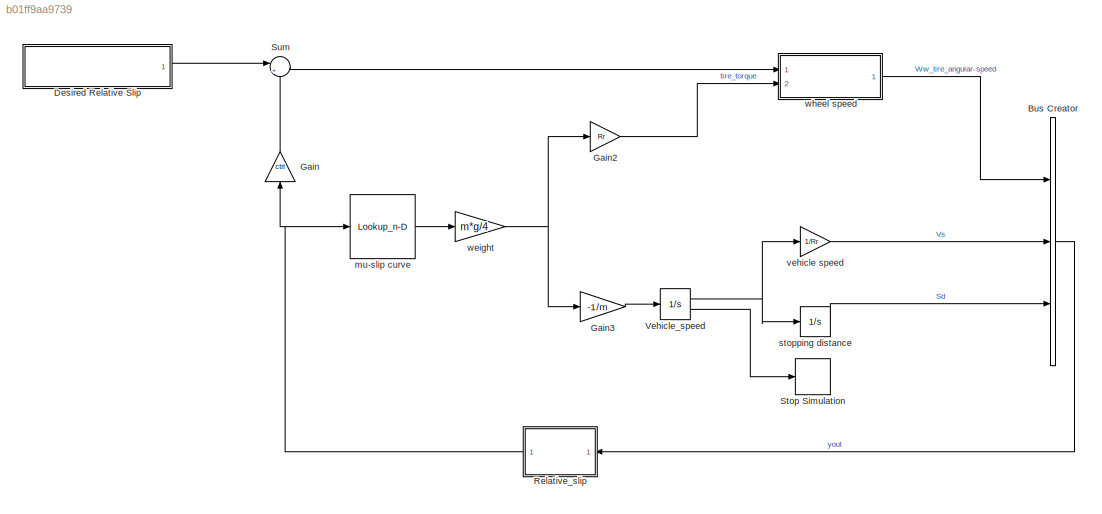
MODEL slx_b01ff9aa9739
KIND model
CONFIG AbsTol = auto
CONFIG EnableMultiTasking = off
CONFIG FixedStep = auto
CONFIG MaxStep = auto
CONFIG MinStep = auto
CONFIG PostLoadFcn = I=5;\nKf=1;\nPBmax=1500;\nRr=1.25;\nTB=0.01;\nctrl=1;\ng=32.18;\nm=50;\nv0=88;\nmu=[0 0.4 0.8 0.97 1 0.98 0.96 0.94 0.92 0.9 0.88 0.855 0.83 0.81 0.79 0.77 0.75 0.73 0.72 0.71 0.7]; \nslip=[0 0.05 0.1 0.15000000000000002 0.2 0.25 0.30000000000000004 0.35000000000000003 0.4 0.45 0.5 0.55 0.6 0.64999999999999991 0.7 0.75 0.8 0.85 0.9 0.95 1]; 
CONFIG RelTol = 1e-3
CONFIG SampleTimeConstraint = Unconstrained
CONFIG SolverName = VariableStepAuto
CONFIG StartTime = 0.0
CONFIG StopTime = 25
BLOCK [BusCreator] Bus Creator
  DisplayOption = bar
  InheritFromInputs = on
  Inputs = 3
  Ports = [3, 1]
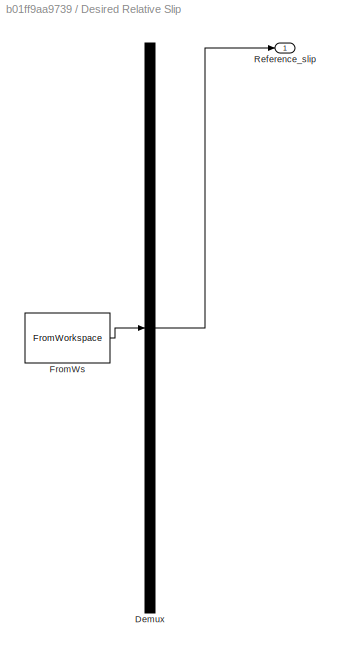
BLOCK [SubSystem] Desired Relative Slip
  ClipboardFcn = sigbuilder_block('clipboard');
  CloseFcn = sigbuilder_block('close');
  ContinueFcn = sigbuilder_block('continue');
  CopyFcn = sigbuilder_block('copy');
  DeleteFcn = sigbuilder_block('delete');
  LoadFcn = sigbuilder_block('load');
  MaskHideContents = on
  ModelCloseFcn = sigbuilder_block('modelClose');
  NameChangeFcn = sigbuilder_block('namechange');
  OpenFcn = sigbuilder_block('open',[437.6 199.2 550.4 400 ]);
  PauseFcn = sigbuilder_block('pause');
  Ports = [0, 1]
  PreSaveFcn = sigbuilder_block('preSave');
  RequestExecContextInheritance = off
  StartFcn = sigbuilder_block('start');
  StopFcn = sigbuilder_block('stop');
  Tag = STV Subsys
BLOCK [Demux] Desired Relative Slip/Demux
  DisplayOption = none
  Outputs = 1
  Ports = [1, 1]
  Tag = STV Demux
BLOCK [FromWorkspace] Desired Relative Slip/FromWs
  Tag = STV FromWs
  VariableName = tuvar
BLOCK [Outport] Desired Relative Slip/Reference_slip
  Tag = STV Outport
BLOCK [Gain] Gain
  Gain = ctrl
  NameLocation = right
BLOCK [Gain] Gain2
  Gain = Rr
BLOCK [Gain] Gain3
  Gain = -1/m
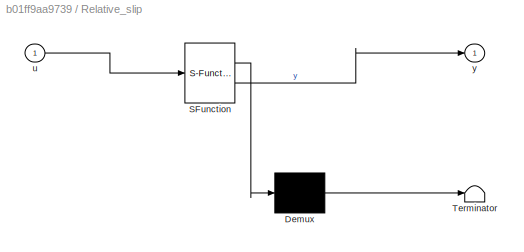
BLOCK [SubSystem] Relative_slip
  ErrorFcn = Stateflow.Translate.translate
  NameLocation = top
  PermitHierarchicalResolution = ExplicitOnly
  Ports = [1, 1]
  RequestExecContextInheritance = off
  SFBlockType = MATLAB Function
  TreatAsAtomicUnit = on
BLOCK [Demux] Relative_slip/ Demux 
  Outputs = 1
  Ports = [1, 1]
BLOCK [S-Function] Relative_slip/ SFunction 
  EnableBusSupport = on
  FunctionName = sf_sfun
  PortCounts = [1 2]
  Ports = [1, 2]
  SFcnIsStateOwnerBlock = off
  SFunctionDeploymentMode = off
  Tag = Stateflow S-Function 2
BLOCK [Terminator] Relative_slip/ Terminator 
BLOCK [Inport] Relative_slip/u
BLOCK [Outport] Relative_slip/y
BLOCK [Stop] Stop Simulation
BLOCK [Sum] Sum
  Inputs = |+-
  Ports = [2, 1]
BLOCK [Integrator] Vehicle_speed
  InitialCondition = v0
  LimitOutput = on
  LowerSaturationLimit = 0
  Ports = [1, 2]
  ShowSaturationPort = on
  UpperSaturationLimit = 5000
BLOCK [Lookup_n-D] mu-slip curve
  BreakpointsForDimension1 = slip
  InputPortMap = u0
  InternalRulePriority = Speed
  NumberOfTableDimensions = 1
  Ports = [1, 1]
  RndMeth = Simplest
  Table = mu
BLOCK [Integrator] stopping distance
  Ports = [1, 1]
BLOCK [Gain] vehicle speed
  Gain = 1/Rr
BLOCK [Gain] weight
  Gain = m*g/4
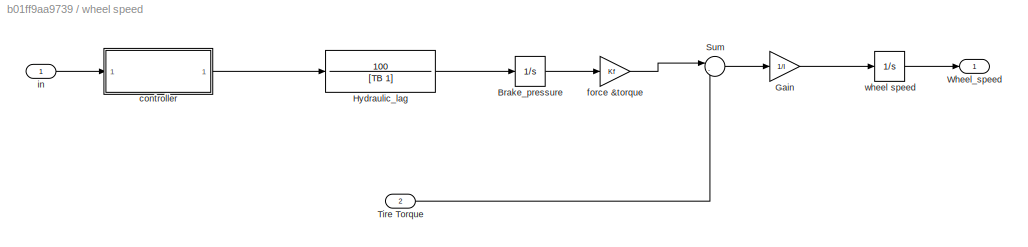
BLOCK [SubSystem] wheel speed
  Ports = [2, 1]
  RequestExecContextInheritance = off
BLOCK [Integrator] wheel speed/Brake_pressure
  LimitOutput = on
  LowerSaturationLimit = 0
  Ports = [1, 1]
  UpperSaturationLimit = PBmax
BLOCK [Gain] wheel speed/Gain
  Gain = 1/I
BLOCK [TransferFcn] wheel speed/Hydraulic_lag
  Denominator = [TB 1]
  Numerator = 100
BLOCK [Sum] wheel speed/Sum
  Inputs = |-+
  Ports = [2, 1]
BLOCK [Inport] wheel speed/Tire Torque
  Port = 2
BLOCK [Outport] wheel speed/Wheel_speed
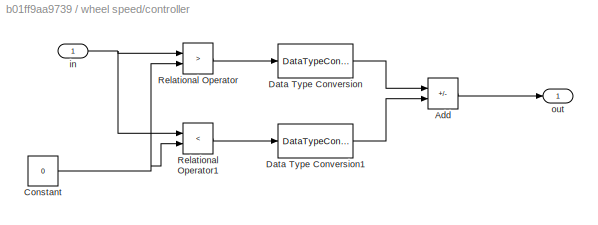
BLOCK [SubSystem] wheel speed/controller
  Ports = [1, 1]
  RequestExecContextInheritance = off
BLOCK [Sum] wheel speed/controller/Add
  IconShape = rectangular
  Inputs = +-
  Ports = [2, 1]
BLOCK [Constant] wheel speed/controller/Constant
  Value = 0
BLOCK [DataTypeConversion] wheel speed/controller/Data Type Conversion
  OutDataTypeStr = double
  RndMeth = Floor
  SaturateOnIntegerOverflow = off
BLOCK [DataTypeConversion] wheel speed/controller/Data Type Conversion1
  OutDataTypeStr = double
  RndMeth = Floor
  SaturateOnIntegerOverflow = off
BLOCK [RelationalOperator] wheel speed/controller/Relational Operator
  InputSameDT = off
  Operator = >
  OutDataTypeStr = boolean
  Ports = [2, 1]
  RndMeth = Simplest
BLOCK [RelationalOperator] wheel speed/controller/Relational Operator1
  InputSameDT = off
  Operator = <
  OutDataTypeStr = boolean
  Ports = [2, 1]
  RndMeth = Simplest
BLOCK [Inport] wheel speed/controller/in
BLOCK [Outport] wheel speed/controller/out
BLOCK [Gain] wheel speed/force &torque
  Gain = Kf
BLOCK [Inport] wheel speed/in
BLOCK [Integrator] wheel speed/wheel speed
  InitialCondition = v0/Rr
  LimitOutput = on
  LowerSaturationLimit = 0
  Ports = [1, 1]
  UpperSaturationLimit = 1000
LINE Bus Creator:1 -> Relative_slip:1
LINE Desired Relative Slip:1 -> Sum:1
LINE Gain2:1 -> wheel speed:2
LINE Gain3:1 -> Vehicle_speed:1
LINE Gain:1 -> Sum:2
NET Relative_slip:1 -> Gain:1, mu-slip curve:1
LINE Sum:1 -> wheel speed:1
NET Vehicle_speed:1 -> stopping distance:1, vehicle speed:1
LINE Vehicle_speed:2 -> Stop Simulation:1
LINE mu-slip curve:1 -> weight:1
LINE stopping distance:1 -> Bus Creator:3
LINE vehicle speed:1 -> Bus Creator:2
NET weight:1 -> Gain2:1, Gain3:1
LINE wheel speed/Brake_pressure:1 -> wheel speed/force &torque:1
LINE wheel speed/Gain:1 -> wheel speed/wheel speed:1
LINE wheel speed/Hydraulic_lag:1 -> wheel speed/Brake_pressure:1
LINE wheel speed/Sum:1 -> wheel speed/Gain:1
LINE wheel speed/Tire Torque:1 -> wheel speed/Sum:2
LINE wheel speed/controller/Add:1 -> wheel speed/controller/out:1
NET wheel speed/controller/Constant:1 -> wheel speed/controller/Relational Operator1:2, wheel speed/controller/Relational Operator:2
LINE wheel speed/controller/Data Type Conversion1:1 -> wheel speed/controller/Add:2
LINE wheel speed/controller/Data Type Conversion:1 -> wheel speed/controller/Add:1
LINE wheel speed/controller/Relational Operator1:1 -> wheel speed/controller/Data Type Conversion1:1
LINE wheel speed/controller/Relational Operator:1 -> wheel speed/controller/Data Type Conversion:1
NET wheel speed/controller/in:1 -> wheel speed/controller/Relational Operator1:1, wheel speed/controller/Relational Operator:1
LINE wheel speed/controller:1 -> wheel speed/Hydraulic_lag:1
LINE wheel speed/force &torque:1 -> wheel speed/Sum:1
LINE wheel speed/in:1 -> wheel speed/controller:1
LINE wheel speed/wheel speed:1 -> wheel speed/Wheel_speed:1
LINE wheel speed:1 -> Bus Creator:1
note: NET lines group one-source signal fan-out (src -> all destinations, sorted); 1:1 wires keep LINE
CHART Relative_slip states=1 transitions=1
  STATE_LABEL 'eML_blk_kernel()'
  STATE_LABEL 'SCRIPT:\nfunction y = fcn(u)\n\ny = 1.0-u(1)/(u(2)+(u(2)==0)*eps);\n'
CHART  states=0 transitions=0
